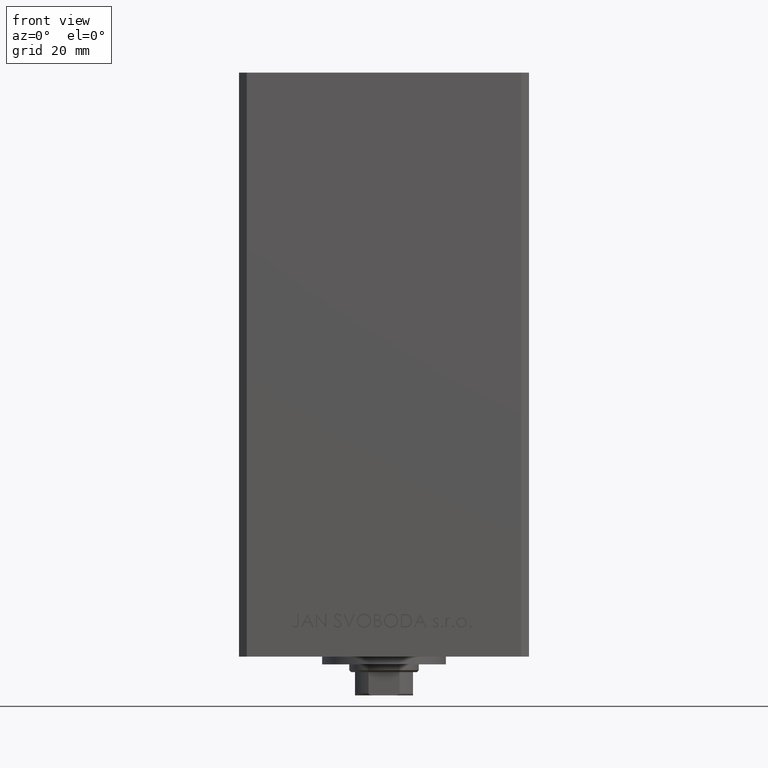
[diagram: clean part render]
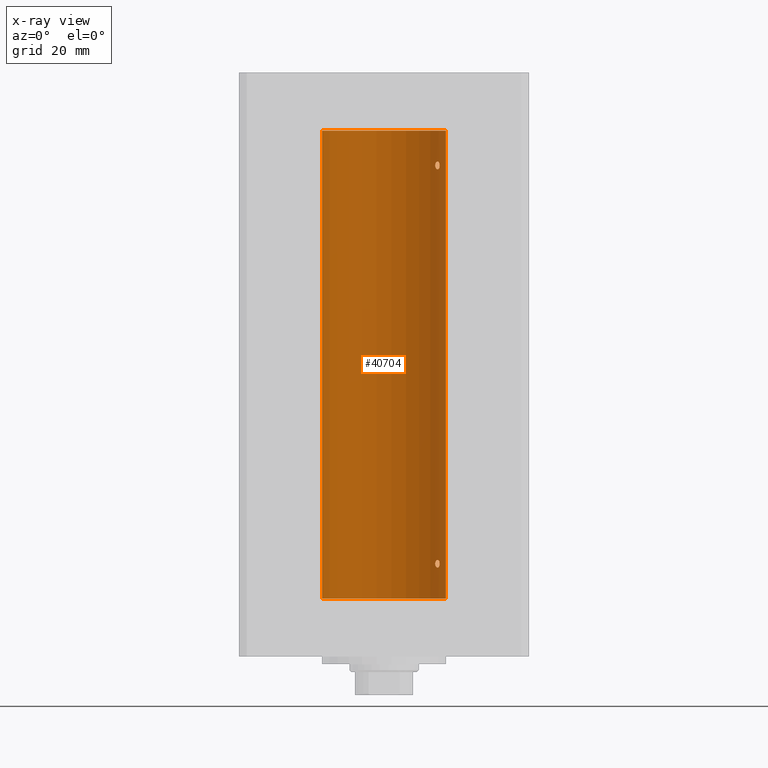
[diagram: x-ray — body ghosted, one internal face saturated and labeled with its STEP entity id]
A machine part, front view, then the same camera in x-ray: the body is ghosted and one INTERNAL B-rep face — a face not visible from any outside direction — is saturated and labeled: STEP entity #40704.
In plain terms, the highlighted cylindrical surface (partial cylindrical patch) has radius 16 mm, axis along (-0, -0, -1).
Its self-contained STEP definition (entity closure, byte-faithful):
#276 = DIRECTION ( 'NONE',  ( -0.000000000000000000, -0.000000000000000000, -1.000000000000000000 ) ) ;
#871 = VERTEX_POINT ( 'NONE', #36551 ) ;
#957 = CARTESIAN_POINT ( 'NONE',  ( 14.38749456993875775, 6.999999999998771649, 111.9999999999994600 ) ) ;
#1835 = CARTESIAN_POINT ( 'NONE',  ( 14.36932461189096877, 7.037242368448794139, 8.720713977669424466 ) ) ;
#1838 = LINE ( 'NONE', #43936, #27702 ) ;
#2075 = CARTESIAN_POINT ( 'NONE',  ( 14.38374727663542707, 7.007716049903074840, 8.857607929436484895 ) ) ;
#2648 = ORIENTED_EDGE ( 'NONE', *, *, #7631, .F. ) ;
#2948 = AXIS2_PLACEMENT_3D ( 'NONE', #36935, #48399, #32946 ) ;
#2952 = VECTOR ( 'NONE', #45532, 1000.000000000000000 ) ;
#3094 = CARTESIAN_POINT ( 'NONE',  ( 16.00000000000000000, 1.959434878635765131E-15, 121.0000000000000000 ) ) ;
#3301 = EDGE_CURVE ( 'NONE', #871, #13136, #24985, .T. ) ;
#3859 = CARTESIAN_POINT ( 'NONE',  ( 13.32447566991143439, 8.857922402414480700, 9.531438119903825168 ) ) ;
#4700 = CARTESIAN_POINT ( 'NONE',  ( 13.98799506618804855, 7.768796316246571187, 111.0189078186198657 ) ) ;
#5331 = CARTESIAN_POINT ( 'NONE',  ( 13.98799506618804855, 7.768796316246572964, 8.018907818619863903 ) ) ;
#5577 = CARTESIAN_POINT ( 'NONE',  ( 14.17516445690067428, 7.421373518623910037, 8.173695665549439937 ) ) ;
#6086 = ORIENTED_EDGE ( 'NONE', *, *, #3301, .F. ) ;
#7016 = FACE_BOUND ( 'NONE', #42181, .T. ) ;
#7461 = CARTESIAN_POINT ( 'NONE',  ( 16.00000000000000000, 1.959434878635765131E-15, 0.000000000000000000 ) ) ;
#7593 = CARTESIAN_POINT ( 'NONE',  ( 13.55739033881265065, 8.499771822136686694, 9.902983336413296200 ) ) ;
#7631 = EDGE_CURVE ( 'NONE', #13136, #871, #30004, .T. ) ;
#7696 = CARTESIAN_POINT ( 'NONE',  ( 13.49787029139620742, 8.591848682074015642, 111.1838145871425638 ) ) ;
#8194 = CARTESIAN_POINT ( 'NONE',  ( 14.31615587311060267, 7.145052533203041456, 111.4626987052744909 ) ) ;
#8690 = CARTESIAN_POINT ( 'NONE',  ( 14.35867515080208534, 7.058999333127636611, 111.6544211985381025 ) ) ;
#9315 = CARTESIAN_POINT ( 'NONE',  ( 13.22875655532295447, 8.999999999999998224, 8.999999999999994671 ) ) ;
#10770 = CARTESIAN_POINT ( 'NONE',  ( 13.32447566991144150, 8.857922402414482477, 112.5314381199038252 ) ) ;
#11224 = AXIS2_PLACEMENT_3D ( 'NONE', #33085, #43814, #48293 ) ;
#11421 = VERTEX_POINT ( 'NONE', #3094 ) ;
#11461 = B_SPLINE_CURVE_WITH_KNOTS ( 'NONE', 3,
 ( #31594, #19649, #12682, #27876, #23142, #7696, #16157, #22900, #38827, #19409, #4700, #30864, #27131, #35098, #8194, #8690, #34847, #46555, #31348, #957 ),
 .UNSPECIFIED., .F., .F.,
 ( 4, 2, 2, 2, 2, 2, 2, 2, 2, 4 ),
 ( 0.000000000000000000, 0.0004221896201403044029, 0.0008443792402806088058, 0.001266568860420913155, 0.001688758480561217612, 0.002110948100701521852, 0.002533137720841826309, 0.002955327340982130766, 0.003166422151052282995, 0.003377516961122435223 ),
 .UNSPECIFIED. ) ;
#11568 = CARTESIAN_POINT ( 'NONE',  ( 14.38749456993875775, 6.999999999998771649, 111.9999999999994600 ) ) ;
#11837 = CARTESIAN_POINT ( 'NONE',  ( 14.12440581436493225, 7.519967855344579455, 9.916845667547992349 ) ) ;
#12682 = CARTESIAN_POINT ( 'NONE',  ( 13.25010819131475692, 8.968783812673564171, 111.7171986622837494 ) ) ;
#12921 = VERTEX_POINT ( 'NONE', #46852 ) ;
#13136 = VERTEX_POINT ( 'NONE', #28336 ) ;
#13546 = CARTESIAN_POINT ( 'NONE',  ( 13.77746685470184040, 8.136441676695669756, 8.001713142955473757 ) ) ;
#13775 = CARTESIAN_POINT ( 'NONE',  ( 13.22875655532295802, 9.000000000000000000, 112.1426595155012933 ) ) ;
#13790 = CARTESIAN_POINT ( 'NONE',  ( 13.22875655532296157, 9.000000000000000000, 8.857026260935734641 ) ) ;
#14032 = CARTESIAN_POINT ( 'NONE',  ( 13.56526576050683452, 8.485384079562178883, 8.116990538131117816 ) ) ;
#14268 = CARTESIAN_POINT ( 'NONE',  ( 13.25022586032984506, 8.968609469449800642, 112.2832896389628985 ) ) ;
#15325 = CARTESIAN_POINT ( 'NONE',  ( 14.38749456993875953, 6.999999999998769873, 8.999999999999467093 ) ) ;
#15372 = LINE ( 'NONE', #37554, #2952 ) ;
#15473 = DIRECTION ( 'NONE',  ( -1.000000000000000000, 0.000000000000000000, 0.000000000000000000 ) ) ;
#16157 = CARTESIAN_POINT ( 'NONE',  ( 13.56526576050683630, 8.485384079562178883, 111.1169905381311054 ) ) ;
#16256 = VERTEX_POINT ( 'NONE', #7461 ) ;
#17031 = CARTESIAN_POINT ( 'NONE',  ( 14.31615587311060445, 7.145052533203043232, 8.462698705274526390 ) ) ;
#17638 = EDGE_LOOP ( 'NONE', ( #32292, #34959, #33668, #43486 ) ) ;
#17649 = EDGE_CURVE ( 'NONE', #16256, #12921, #37459, .T. ) ;
#17769 = CARTESIAN_POINT ( 'NONE',  ( 13.25010819131475159, 8.968783812673564171, 8.717198662283735189 ) ) ;
#18489 = CYLINDRICAL_SURFACE ( 'NONE', #37225, 16.00000000000000000 ) ;
#19409 = CARTESIAN_POINT ( 'NONE',  ( 13.92009581174526645, 7.889943515799717311, 110.9984609092137902 ) ) ;
#19649 = CARTESIAN_POINT ( 'NONE',  ( 13.22875655532295625, 9.000000000000001776, 111.8570262609357115 ) ) ;
#20533 = CARTESIAN_POINT ( 'NONE',  ( 14.27574973237574696, 7.225997637813494023, 8.353078210746339494 ) ) ;
#21343 = ORIENTED_EDGE ( 'NONE', *, *, #21358, .F. ) ;
#21358 = EDGE_CURVE ( 'NONE', #42023, #21480, #11461, .T. ) ;
#21480 = VERTEX_POINT ( 'NONE', #11568 ) ;
#21512 = DIRECTION ( 'NONE',  ( -0.000000000000000000, -0.000000000000000000, -1.000000000000000000 ) ) ;
#21737 = CARTESIAN_POINT ( 'NONE',  ( 13.55739033881265421, 8.499771822136690247, 112.9029833364133282 ) ) ;
#21973 = CARTESIAN_POINT ( 'NONE',  ( 14.27601081693604002, 7.225489892961964422, 112.6464466749832667 ) ) ;
#22794 = CARTESIAN_POINT ( 'NONE',  ( 13.37722806521492025, 8.778496895713756132, 9.640492215702138878 ) ) ;
#22900 = CARTESIAN_POINT ( 'NONE',  ( 13.70633586603035070, 8.255576010093806261, 111.0253286105015036 ) ) ;
#23142 = CARTESIAN_POINT ( 'NONE',  ( 13.37714181818049575, 8.778635597591467388, 111.3595547667462853 ) ) ;
#24426 = CIRCLE ( 'NONE', #2948, 16.00000000000000000 ) ;
#24508 = CARTESIAN_POINT ( 'NONE',  ( 13.37714181818049575, 8.778635597591465611, 8.359554766746297716 ) ) ;
#24985 = B_SPLINE_CURVE_WITH_KNOTS ( 'NONE', 3,
 ( #15325, #34501, #26538, #37986, #34009, #11837, #42224, #49221, #7593, #22794, #3859, #34258, #47439, #39713 ),
 .UNSPECIFIED., .F., .F.,
 ( 4, 2, 2, 2, 2, 2, 4 ),
 ( 0.003377516961122438259, 0.003798778705083848996, 0.004220040449045259733, 0.005062563936968083808, 0.005905087424890908751, 0.006326349168852319488, 0.006747610912813730225 ),
 .UNSPECIFIED. ) ;
#25221 = CARTESIAN_POINT ( 'NONE',  ( 13.22875655532295447, 8.999999999999996447, 111.9999999999999858 ) ) ;
#26538 = CARTESIAN_POINT ( 'NONE',  ( 14.37260515874679534, 7.030802976542521954, 9.282431798581109561 ) ) ;
#27131 = CARTESIAN_POINT ( 'NONE',  ( 14.17516445690067606, 7.421373518623911814, 111.1736956655494453 ) ) ;
#27702 = VECTOR ( 'NONE', #21512, 1000.000000000000000 ) ;
#27876 = CARTESIAN_POINT ( 'NONE',  ( 13.32443414199768306, 8.857985377928102366, 111.4686058303161076 ) ) ;
#28336 = CARTESIAN_POINT ( 'NONE',  ( 13.22875655532295447, 8.999999999999998224, 8.999999999999994671 ) ) ;
#28744 = CARTESIAN_POINT ( 'NONE',  ( 14.38749456993828879, 7.000000000000026645, 8.929291109518763037 ) ) ;
#28970 = CARTESIAN_POINT ( 'NONE',  ( 13.98853479819182688, 7.771757428685178049, 113.0036593920346775 ) ) ;
#29216 = CARTESIAN_POINT ( 'NONE',  ( 14.38749456993835629, 6.999999999999896971, 112.1411069770374525 ) ) ;
#29940 = FACE_OUTER_BOUND ( 'NONE', #17638, .T. ) ;
#30004 = B_SPLINE_CURVE_WITH_KNOTS ( 'NONE', 3,
 ( #9315, #13790, #17769, #32960, #24508, #39706, #14032, #39456, #13546, #47433, #5331, #36210, #5577, #20533, #17031, #35727, #1835, #2075, #28744, #43934 ),
 .UNSPECIFIED., .F., .F.,
 ( 4, 2, 2, 2, 2, 2, 2, 2, 2, 4 ),
 ( 0.000000000000000000, 0.0004221896201403055413, 0.0008443792402806110826, 0.001266568860420916624, 0.001688758480561222165, 0.002110948100701527490, 0.002533137720841833248, 0.002955327340982138572, 0.003166422151052288633, 0.003377516961122438259 ),
 .UNSPECIFIED. ) ;
#30864 = CARTESIAN_POINT ( 'NONE',  ( 14.11701305531884465, 7.531808851198018573, 111.1073667830906828 ) ) ;
#31348 = CARTESIAN_POINT ( 'NONE',  ( 14.38749456993829234, 7.000000000000031086, 111.9292911095187719 ) ) ;
#31594 = CARTESIAN_POINT ( 'NONE',  ( 13.22875655532295447, 8.999999999999996447, 111.9999999999999858 ) ) ;
#32292 = ORIENTED_EDGE ( 'NONE', *, *, #40315, .F. ) ;
#32946 = DIRECTION ( 'NONE',  ( 1.000000000000000000, 0.000000000000000000, 0.000000000000000000 ) ) ;
#32960 = CARTESIAN_POINT ( 'NONE',  ( 13.32443414199768839, 8.857985377928104143, 8.468605830316136007 ) ) ;
#33085 = CARTESIAN_POINT ( 'NONE',  ( 0.000000000000000000, 0.000000000000000000, 0.000000000000000000 ) ) ;
#33668 = ORIENTED_EDGE ( 'NONE', *, *, #34904, .T. ) ;
#34009 = CARTESIAN_POINT ( 'NONE',  ( 14.27601081693604712, 7.225489892961965310, 9.646446674983275571 ) ) ;
#34258 = CARTESIAN_POINT ( 'NONE',  ( 13.25022586032984329, 8.968609469449802418, 9.283289638962903823 ) ) ;
#34414 = FACE_BOUND ( 'NONE', #47520, .T. ) ;
#34501 = CARTESIAN_POINT ( 'NONE',  ( 14.38749456993835807, 6.999999999999894307, 9.141106977037484427 ) ) ;
#34847 = CARTESIAN_POINT ( 'NONE',  ( 14.36932461189096522, 7.037242368448793250, 111.7207139776694333 ) ) ;
#34904 = EDGE_CURVE ( 'NONE', #41977, #12921, #15372, .T. ) ;
#34959 = ORIENTED_EDGE ( 'NONE', *, *, #38006, .T. ) ;
#35098 = CARTESIAN_POINT ( 'NONE',  ( 14.27574973237574874, 7.225997637813494023, 111.3530782107463466 ) ) ;
#35727 = CARTESIAN_POINT ( 'NONE',  ( 14.35867515080208356, 7.058999333127636611, 8.654421198538130966 ) ) ;
#36210 = CARTESIAN_POINT ( 'NONE',  ( 14.11701305531884287, 7.531808851198022126, 8.107366783090686368 ) ) ;
#36551 = CARTESIAN_POINT ( 'NONE',  ( 14.38749456993875953, 6.999999999998769873, 8.999999999999467093 ) ) ;
#36935 = CARTESIAN_POINT ( 'NONE',  ( 0.000000000000000000, 0.000000000000000000, 121.0000000000000000 ) ) ;
#37225 = AXIS2_PLACEMENT_3D ( 'NONE', #45136, #276, #15473 ) ;
#37416 = CARTESIAN_POINT ( 'NONE',  ( 13.37722806521492380, 8.778496895713761461, 112.6404922157021389 ) ) ;
#37459 = CIRCLE ( 'NONE', #11224, 16.00000000000000000 ) ;
#37554 = CARTESIAN_POINT ( 'NONE',  ( -16.00000000000000000, 0.000000000000000000, 121.0000000000000000 ) ) ;
#37986 = CARTESIAN_POINT ( 'NONE',  ( 14.31678893103186390, 7.143775209822729622, 9.534780048070684799 ) ) ;
#38006 = EDGE_CURVE ( 'NONE', #11421, #41977, #24426, .T. ) ;
#38012 = EDGE_CURVE ( 'NONE', #21480, #42023, #48265, .T. ) ;
#38826 = CARTESIAN_POINT ( 'NONE',  ( 13.22875655532295447, 8.999999999999996447, 111.9999999999999858 ) ) ;
#38827 = CARTESIAN_POINT ( 'NONE',  ( 13.77746685470184040, 8.136441676695669756, 111.0017131429554667 ) ) ;
#39456 = CARTESIAN_POINT ( 'NONE',  ( 13.70633586603034715, 8.255576010093811590, 8.025328610501505366 ) ) ;
#39706 = CARTESIAN_POINT ( 'NONE',  ( 13.49787029139620920, 8.591848682074017418, 8.183814587142569152 ) ) ;
#39713 = CARTESIAN_POINT ( 'NONE',  ( 13.22875655532295447, 8.999999999999998224, 8.999999999999994671 ) ) ;
#40315 = EDGE_CURVE ( 'NONE', #11421, #16256, #1838, .T. ) ;
#40704 = ADVANCED_FACE ( 'NONE', ( #29940, #34414, #7016 ), #18489, .F. ) ;
#41977 = VERTEX_POINT ( 'NONE', #43310 ) ;
#42023 = VERTEX_POINT ( 'NONE', #38826 ) ;
#42181 = EDGE_LOOP ( 'NONE', ( #2648, #6086 ) ) ;
#42224 = CARTESIAN_POINT ( 'NONE',  ( 13.98853479819183043, 7.771757428685174496, 10.00365939203466681 ) ) ;
#43310 = CARTESIAN_POINT ( 'NONE',  ( -16.00000000000000000, 0.000000000000000000, 121.0000000000000000 ) ) ;
#43486 = ORIENTED_EDGE ( 'NONE', *, *, #17649, .F. ) ;
#43814 = DIRECTION ( 'NONE',  ( -0.000000000000000000, 0.000000000000000000, 1.000000000000000000 ) ) ;
#43934 = CARTESIAN_POINT ( 'NONE',  ( 14.38749456993875953, 6.999999999998769873, 8.999999999999467093 ) ) ;
#43936 = CARTESIAN_POINT ( 'NONE',  ( 16.00000000000000000, 1.959434878635765131E-15, 121.0000000000000000 ) ) ;
#44662 = CARTESIAN_POINT ( 'NONE',  ( 13.70635209652260045, 8.259251269739735335, 112.9961002086728570 ) ) ;
#44903 = CARTESIAN_POINT ( 'NONE',  ( 14.37260515874679356, 7.030802976542521066, 112.2824317985811007 ) ) ;
#45136 = CARTESIAN_POINT ( 'NONE',  ( 0.000000000000000000, 0.000000000000000000, 121.0000000000000000 ) ) ;
#45532 = DIRECTION ( 'NONE',  ( -0.000000000000000000, -0.000000000000000000, -1.000000000000000000 ) ) ;
#46555 = CARTESIAN_POINT ( 'NONE',  ( 14.38374727663543062, 7.007716049903075728, 111.8576079294364973 ) ) ;
#46852 = CARTESIAN_POINT ( 'NONE',  ( -16.00000000000000000, 0.000000000000000000, 0.000000000000000000 ) ) ;
#47433 = CARTESIAN_POINT ( 'NONE',  ( 13.92009581174526822, 7.889943515799717311, 7.998460909213807035 ) ) ;
#47439 = CARTESIAN_POINT ( 'NONE',  ( 13.22875655532295625, 9.000000000000000000, 9.142659515501296852 ) ) ;
#47520 = EDGE_LOOP ( 'NONE', ( #21343, #48993 ) ) ;
#47908 = CARTESIAN_POINT ( 'NONE',  ( 14.38749456993875775, 6.999999999998771649, 111.9999999999994600 ) ) ;
#48265 = B_SPLINE_CURVE_WITH_KNOTS ( 'NONE', 3,
 ( #47908, #29216, #44903, #48894, #21973, #48646, #28970, #44662, #21737, #37416, #10770, #14268, #13775, #25221 ),
 .UNSPECIFIED., .F., .F.,
 ( 4, 2, 2, 2, 2, 2, 4 ),
 ( 0.003377516961122435223, 0.003798778705083842924, 0.004220040449045250192, 0.005062563936968066461, 0.005905087424890876659, 0.006326349168852295202, 0.006747610912813714612 ),
 .UNSPECIFIED. ) ;
#48293 = DIRECTION ( 'NONE',  ( 1.000000000000000000, 0.000000000000000000, 0.000000000000000000 ) ) ;
#48399 = DIRECTION ( 'NONE',  ( -0.000000000000000000, 0.000000000000000000, 1.000000000000000000 ) ) ;
#48646 = CARTESIAN_POINT ( 'NONE',  ( 14.12440581436492870, 7.519967855344582119, 112.9168456675480030 ) ) ;
#48894 = CARTESIAN_POINT ( 'NONE',  ( 14.31678893103185857, 7.143775209822732286, 112.5347800480706866 ) ) ;
#48993 = ORIENTED_EDGE ( 'NONE', *, *, #38012, .F. ) ;
#49221 = CARTESIAN_POINT ( 'NONE',  ( 13.70635209652260222, 8.259251269739738888, 9.996100208672867637 ) ) ;